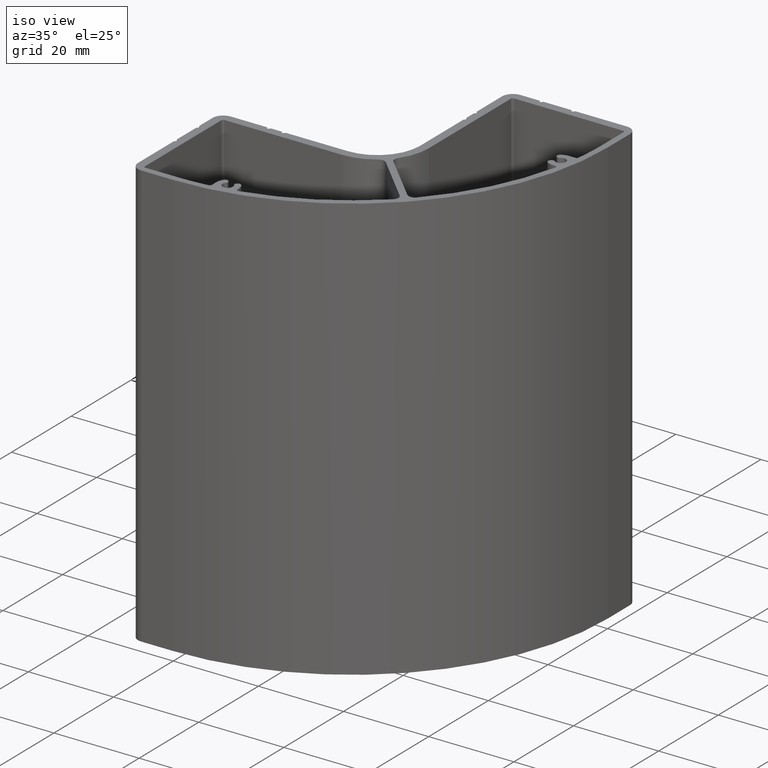
[diagram: clean part render]
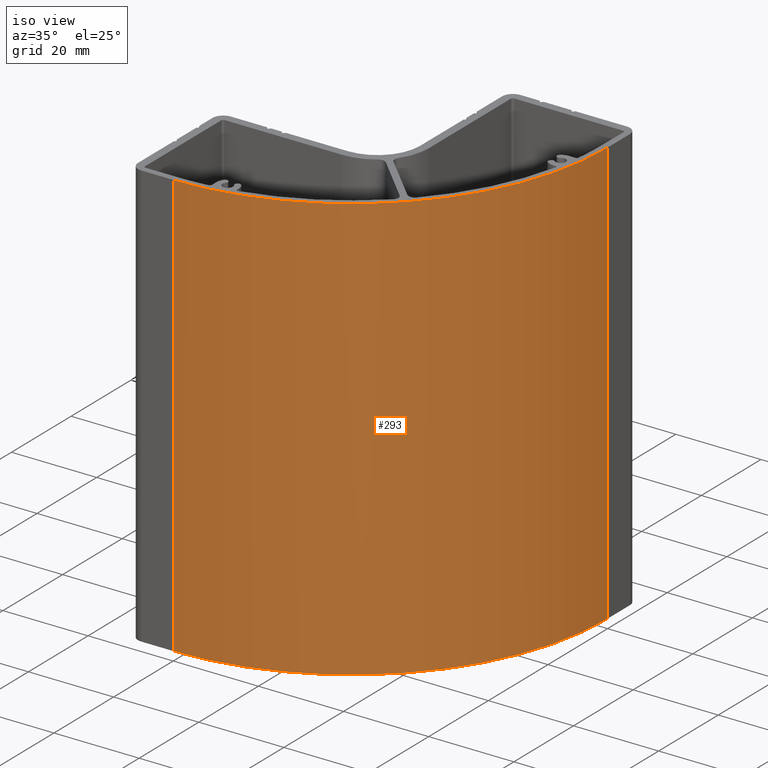
[diagram: same view with one face highlighted and labeled with its STEP entity id]
A machine part, iso view. The second image highlights one B-rep face of the part: STEP entity #293.
In plain terms, the highlighted cylindrical surface (partial cylindrical patch) has radius 60 mm, axis along (0, 0, 1).
Its self-contained STEP definition (entity closure, byte-faithful):
#236=CARTESIAN_POINT('',(-20.0,-40.0,0.0));
#237=VERTEX_POINT('',#236);
#244=CARTESIAN_POINT('',(-20.0,-40.0,100.0));
#245=VERTEX_POINT('',#244);
#246=CARTESIAN_POINT('',(-20.0,-40.0,100.0));
#247=DIRECTION('',(0.0,0.0,-1.0));
#248=VECTOR('',#247,100.0);
#249=LINE('',#246,#248);
#250=EDGE_CURVE('',#245,#237,#249,.T.);
#261=CARTESIAN_POINT('',(-20.0,20.0,100.0));
#262=DIRECTION('',(0.0,0.0,1.0));
#263=DIRECTION('',(5.053215E-016,-1.0,0.0));
#264=AXIS2_PLACEMENT_3D('',#261,#262,#263);
#265=CYLINDRICAL_SURFACE('',#264,60.0);
#266=ORIENTED_EDGE('',*,*,#250,.T.);
#267=CARTESIAN_POINT('',(40.000000000000114,20.0,0.0));
#268=VERTEX_POINT('',#267);
#269=CARTESIAN_POINT('',(-20.0,20.0,0.0));
#270=DIRECTION('',(0.0,0.0,1.0));
#271=DIRECTION('',(1.0,0.0,0.0));
#272=AXIS2_PLACEMENT_3D('',#269,#270,#271);
#273=CIRCLE('',#272,60.0);
#274=EDGE_CURVE('',#237,#268,#273,.T.);
#275=ORIENTED_EDGE('',*,*,#274,.T.);
#276=CARTESIAN_POINT('',(40.000000000000114,20.0,100.0));
#277=VERTEX_POINT('',#276);
#278=CARTESIAN_POINT('',(40.000000000000114,20.0,100.0));
#279=DIRECTION('',(0.0,0.0,-1.0));
#280=VECTOR('',#279,100.0);
#281=LINE('',#278,#280);
#282=EDGE_CURVE('',#277,#268,#281,.T.);
#283=ORIENTED_EDGE('',*,*,#282,.F.);
#284=CARTESIAN_POINT('',(-20.0,20.0,100.0));
#285=DIRECTION('',(0.0,0.0,1.0));
#286=DIRECTION('',(1.0,0.0,0.0));
#287=AXIS2_PLACEMENT_3D('',#284,#285,#286);
#288=CIRCLE('',#287,60.0);
#289=EDGE_CURVE('',#245,#277,#288,.T.);
#290=ORIENTED_EDGE('',*,*,#289,.F.);
#291=EDGE_LOOP('',(#266,#275,#283,#290));
#292=FACE_OUTER_BOUND('',#291,.T.);
#293=ADVANCED_FACE('',(#292),#265,.T.);